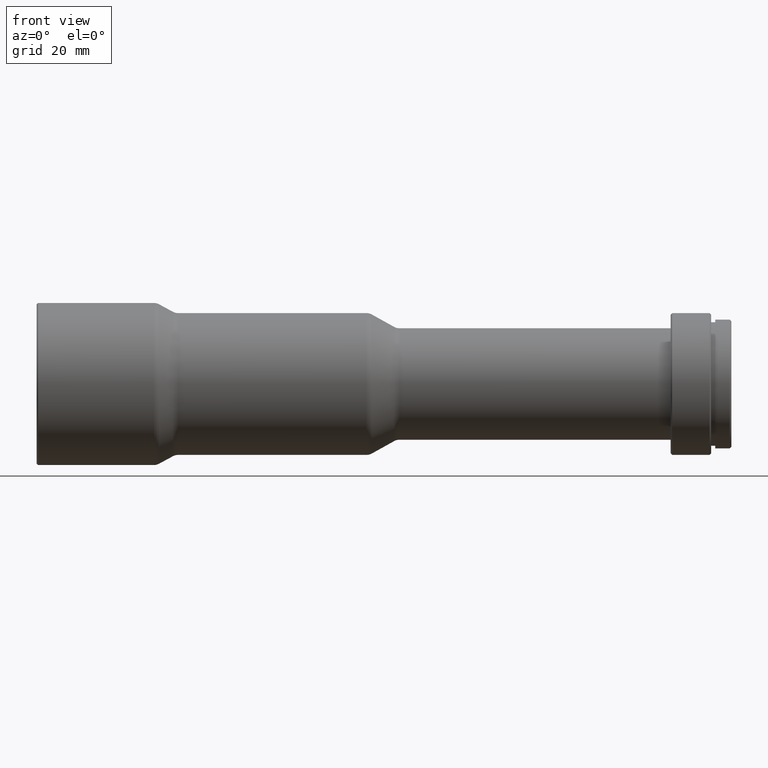
[diagram: clean part render]
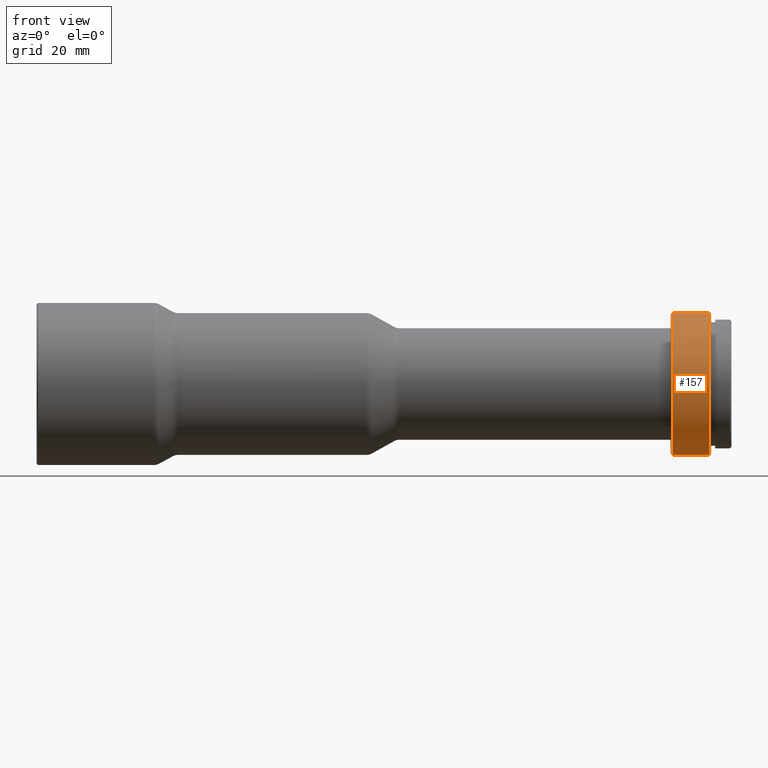
[diagram: same view with one face highlighted and labeled with its STEP entity id]
A machine part, front view. The second image highlights one B-rep face of the part: STEP entity #157.
In plain terms, the highlighted cylindrical surface (partial cylindrical patch) has radius 14 mm, axis along (-1, -0, -0).
Its self-contained STEP definition (entity closure, byte-faithful):
#45 = DIRECTION ( 'NONE',  ( -1.000000000000000000, -0.0000000000000000000, -0.0000000000000000000 ) ) ;
#73 = LINE ( 'NONE', #911, #225 ) ;
#125 = DIRECTION ( 'NONE',  ( 0.0000000000000000000, 0.0000000000000000000, 1.000000000000000000 ) ) ;
#157 = ADVANCED_FACE ( 'NONE', ( #715 ), #527, .T. ) ;
#193 = CARTESIAN_POINT ( 'NONE',  ( 125.4999999999999700, 0.0000000000000000000, 0.0000000000000000000 ) ) ;
#224 = CIRCLE ( 'NONE', #654, 14.00000000000000000 ) ;
#225 = VECTOR ( 'NONE', #668, 1000.000000000000000 ) ;
#229 = ORIENTED_EDGE ( 'NONE', *, *, #291, .F. ) ;
#257 = CARTESIAN_POINT ( 'NONE',  ( -3.741758549102351900, 0.0000000000000000000, 14.00000000000000000 ) ) ;
#291 = EDGE_CURVE ( 'NONE', #615, #633, #73, .T. ) ;
#299 = DIRECTION ( 'NONE',  ( -1.000000000000000000, -0.0000000000000000000, -0.0000000000000000000 ) ) ;
#302 = EDGE_CURVE ( 'NONE', #387, #1088, #969, .T. ) ;
#325 = VECTOR ( 'NONE', #688, 1000.000000000000000 ) ;
#347 = AXIS2_PLACEMENT_3D ( 'NONE', #563, #45, #125 ) ;
#387 = VERTEX_POINT ( 'NONE', #425 ) ;
#425 = CARTESIAN_POINT ( 'NONE',  ( 132.8999999999999800, 0.0000000000000000000, 14.00000000000000000 ) ) ;
#435 = EDGE_CURVE ( 'NONE', #633, #1088, #224, .T. ) ;
#448 = EDGE_LOOP ( 'NONE', ( #229, #737, #722, #1026 ) ) ;
#527 = CYLINDRICAL_SURFACE ( 'NONE', #347, 14.00000000000000000 ) ;
#563 = CARTESIAN_POINT ( 'NONE',  ( -3.741758549102351900, 0.0000000000000000000, 0.0000000000000000000 ) ) ;
#615 = VERTEX_POINT ( 'NONE', #744 ) ;
#633 = VERTEX_POINT ( 'NONE', #702 ) ;
#654 = AXIS2_PLACEMENT_3D ( 'NONE', #193, #958, #712 ) ;
#668 = DIRECTION ( 'NONE',  ( -1.000000000000000000, -0.0000000000000000000, -0.0000000000000000000 ) ) ;
#688 = DIRECTION ( 'NONE',  ( -1.000000000000000000, -0.0000000000000000000, -0.0000000000000000000 ) ) ;
#702 = CARTESIAN_POINT ( 'NONE',  ( 125.4999999999999700, 1.714505518806294600E-015, -14.00000000000000000 ) ) ;
#712 = DIRECTION ( 'NONE',  ( 0.0000000000000000000, 0.0000000000000000000, 1.000000000000000000 ) ) ;
#715 = FACE_OUTER_BOUND ( 'NONE', #448, .T. ) ;
#722 = ORIENTED_EDGE ( 'NONE', *, *, #302, .T. ) ;
#737 = ORIENTED_EDGE ( 'NONE', *, *, #826, .T. ) ;
#744 = CARTESIAN_POINT ( 'NONE',  ( 132.8999999999999800, 1.714505518806294600E-015, -14.00000000000000000 ) ) ;
#826 = EDGE_CURVE ( 'NONE', #615, #387, #1020, .T. ) ;
#855 = CARTESIAN_POINT ( 'NONE',  ( 125.4999999999999700, 0.0000000000000000000, 14.00000000000000000 ) ) ;
#897 = DIRECTION ( 'NONE',  ( 0.0000000000000000000, 0.0000000000000000000, 1.000000000000000000 ) ) ;
#911 = CARTESIAN_POINT ( 'NONE',  ( -3.741758549102351900, 1.714505518806294600E-015, -14.00000000000000000 ) ) ;
#958 = DIRECTION ( 'NONE',  ( -1.000000000000000000, -0.0000000000000000000, -0.0000000000000000000 ) ) ;
#969 = LINE ( 'NONE', #257, #325 ) ;
#1009 = AXIS2_PLACEMENT_3D ( 'NONE', #1072, #299, #897 ) ;
#1020 = CIRCLE ( 'NONE', #1009, 14.00000000000000000 ) ;
#1026 = ORIENTED_EDGE ( 'NONE', *, *, #435, .F. ) ;
#1072 = CARTESIAN_POINT ( 'NONE',  ( 132.8999999999999800, 0.0000000000000000000, 0.0000000000000000000 ) ) ;
#1088 = VERTEX_POINT ( 'NONE', #855 ) ;